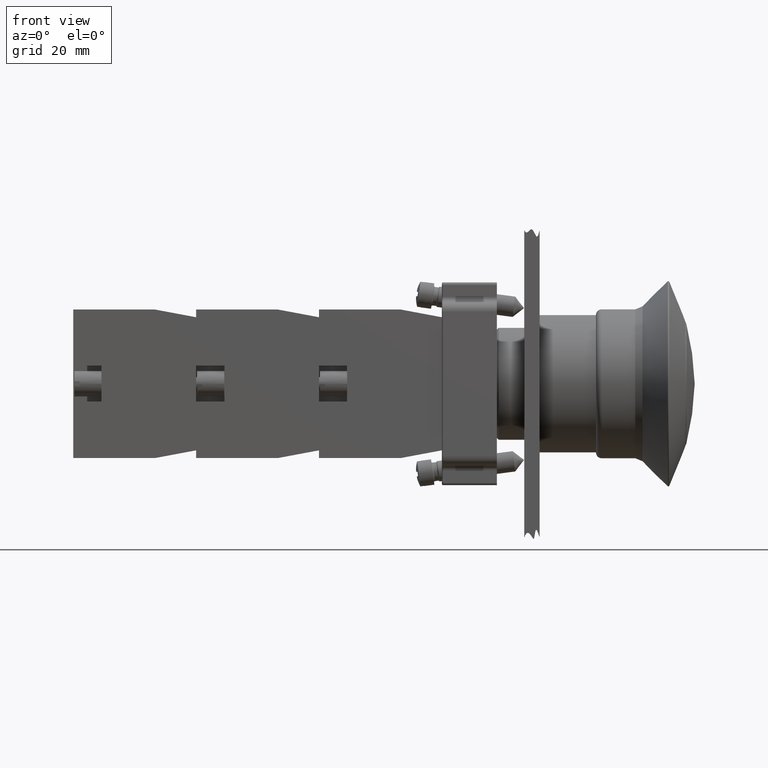
[diagram: clean part render]
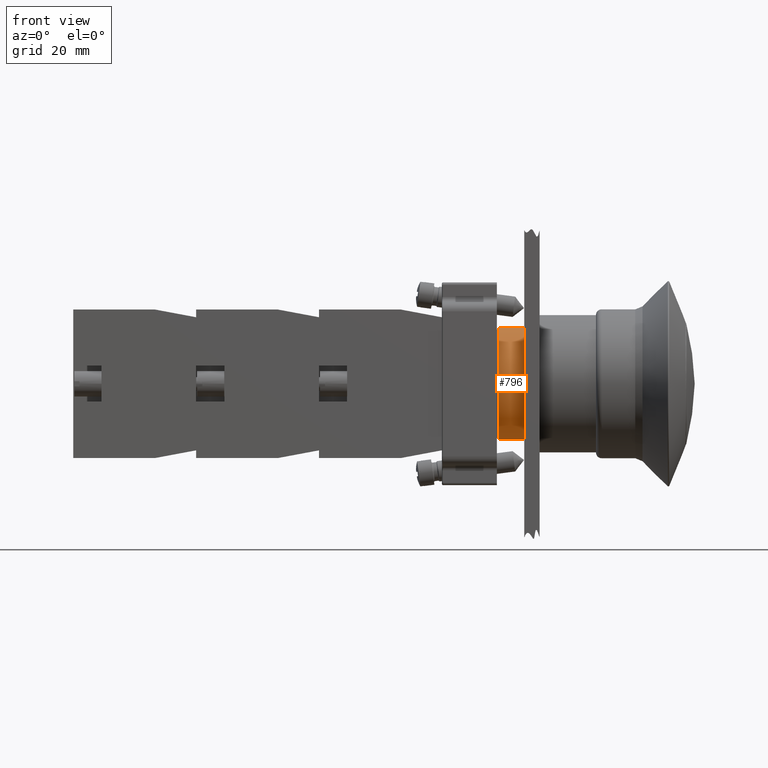
[diagram: same view with one face highlighted and labeled with its STEP entity id]
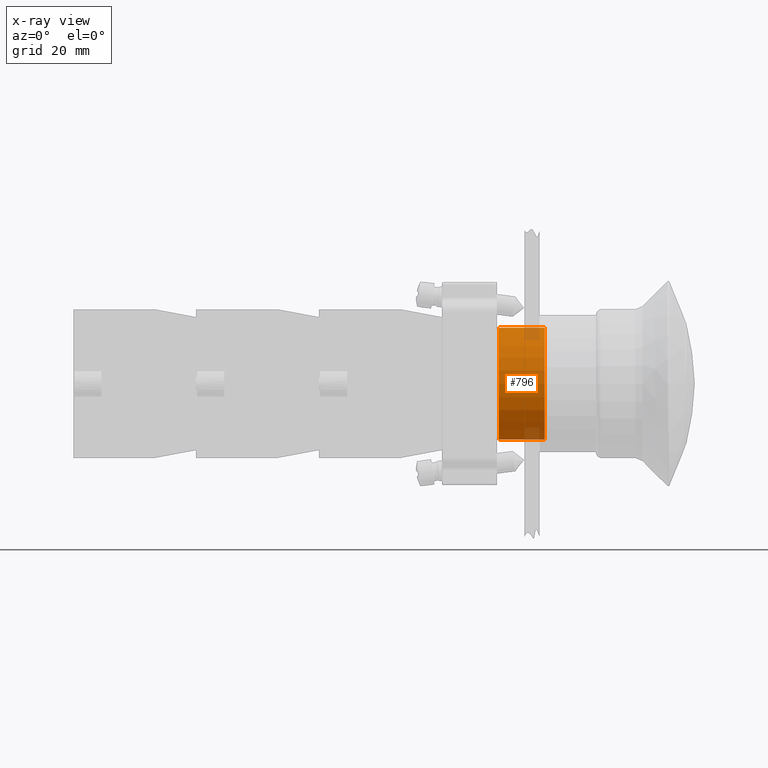
[diagram: x-ray of the same camera — body ghosted, the highlighted face saturated]
A machine part, front view. The second image highlights one B-rep face of the part: STEP entity #796.
The next image is the same camera in x-ray: the body ghosted, the highlighted face saturated — about 7% of this face is hidden behind the body in this view.
In plain terms, the highlighted cylindrical surface (bore or boss wall) has radius 11 mm, axis along (1, -0, 0).
Its self-contained STEP definition (entity closure, byte-faithful):
#762=CARTESIAN_POINT('',(7.661439613035351,8.799128933604655,0.0));
#763=VERTEX_POINT('',#762);
#764=CARTESIAN_POINT('',(7.661439613035351,-2.200871066395349,0.0));
#765=DIRECTION('',(1.0,1.504367E-013,0.0));
#766=DIRECTION('',(-1.504367E-013,1.0,0.0));
#767=AXIS2_PLACEMENT_3D('',#764,#765,#766);
#768=CIRCLE('',#767,11.000000000000004);
#769=EDGE_CURVE('',#763,#763,#768,.T.);
#777=CARTESIAN_POINT('',(15.661439613035352,-2.200871066395349,0.0));
#778=DIRECTION('',(1.0,-3.885962E-018,0.0));
#779=DIRECTION('',(-1.504367E-013,1.0,0.0));
#780=AXIS2_PLACEMENT_3D('',#777,#778,#779);
#781=CYLINDRICAL_SURFACE('',#780,11.000000000000005);
#782=ORIENTED_EDGE('',*,*,#769,.T.);
#783=EDGE_LOOP('',(#782));
#784=FACE_OUTER_BOUND('',#783,.T.);
#785=CARTESIAN_POINT('',(16.661439613035355,8.799128933604655,0.0));
#786=VERTEX_POINT('',#785);
#787=CARTESIAN_POINT('',(16.661439613035355,-2.200871066395349,0.0));
#788=DIRECTION('',(1.0,1.504367E-013,0.0));
#789=DIRECTION('',(-1.504367E-013,1.0,0.0));
#790=AXIS2_PLACEMENT_3D('',#787,#788,#789);
#791=CIRCLE('',#790,11.000000000000005);
#792=EDGE_CURVE('',#786,#786,#791,.T.);
#793=ORIENTED_EDGE('',*,*,#792,.F.);
#794=EDGE_LOOP('',(#793));
#795=FACE_BOUND('',#794,.T.);
#796=ADVANCED_FACE('',(#784,#795),#781,.T.);